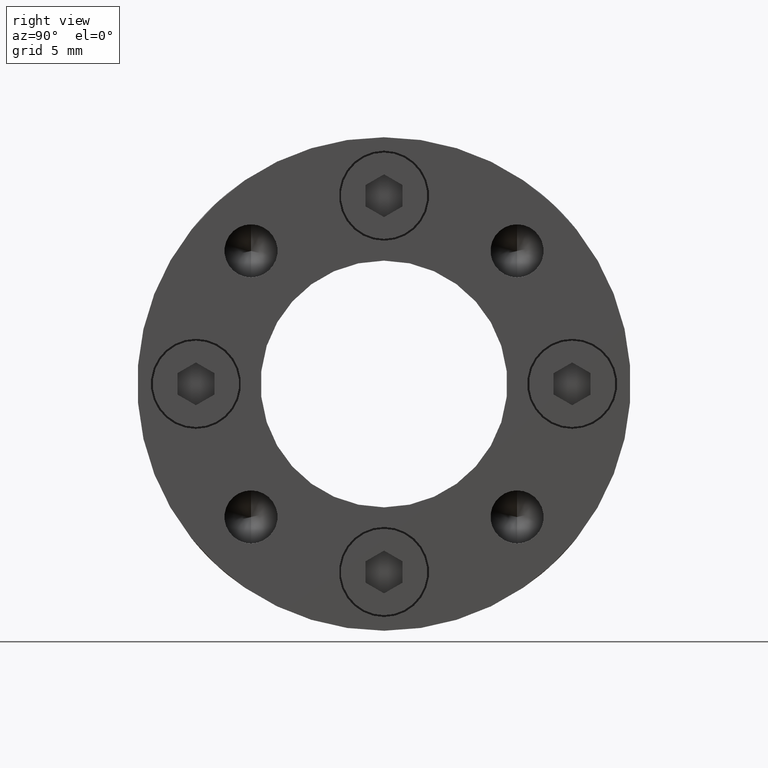
[diagram: clean part render]
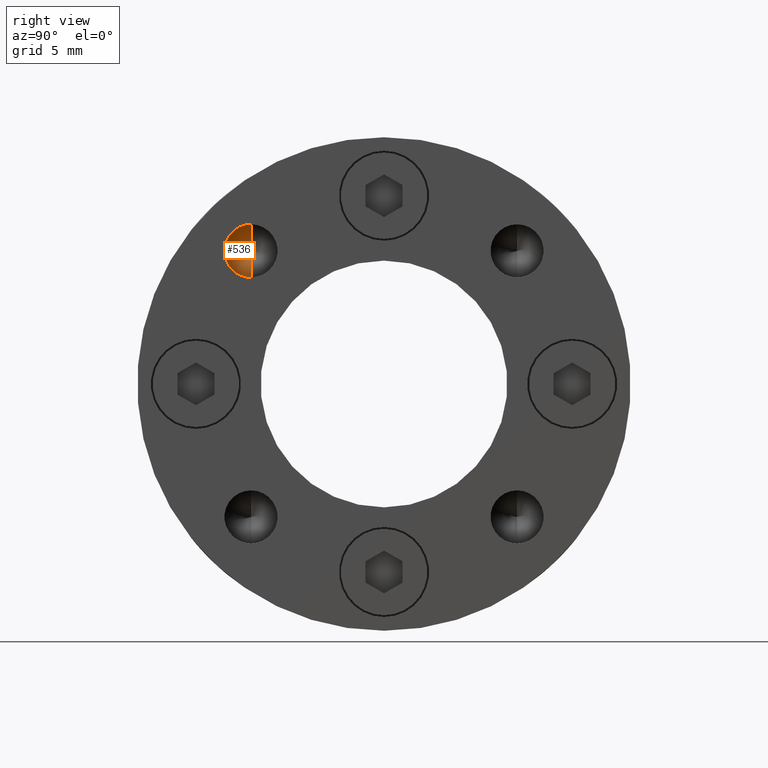
[diagram: same view with one face highlighted and labeled with its STEP entity id]
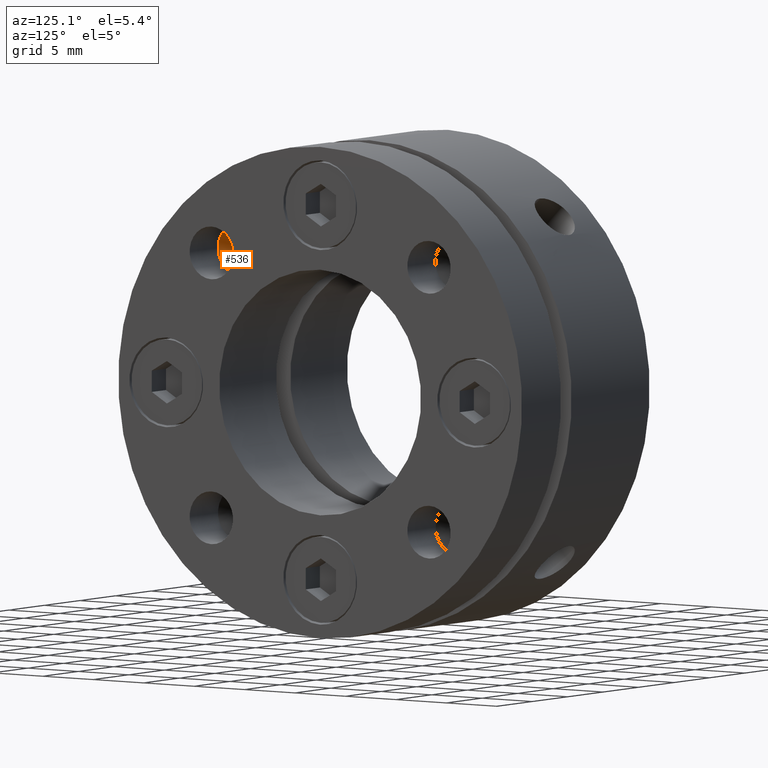
[diagram: same view with one face highlighted and labeled with its STEP entity id]
A machine part, right view. The second image highlights one B-rep face of the part: STEP entity #536.
A second angle (auxiliary view) of the same face is appended — the face is thin or edge-on in the first view.
In plain terms, the highlighted conical surface has half-angle 59 deg.
Its self-contained STEP definition (entity closure, byte-faithful):
#236 = FACE_OUTER_BOUND ( 'NONE', #3262, .T. ) ;
#244 = CONICAL_SURFACE ( 'NONE', #2377, 2.149999999147894400, 1.029744257503080600 ) ;
#536 = ADVANCED_FACE ( 'NONE', ( #236 ), #244, .F. ) ;
#1106 = LINE ( 'NONE', #1790, #1112 ) ;
#1112 = VECTOR ( 'NONE', #1793, 1000.000000000000200 ) ;
#1171 = LINE ( 'NONE', #1691, #1173 ) ;
#1173 = VECTOR ( 'NONE', #1690, 1000.000000000000200 ) ;
#1190 = CIRCLE ( 'NONE', #2186, 2.150000000000000800 ) ;
#1300 = VERTEX_POINT ( 'NONE', #1954 ) ;
#1338 = VERTEX_POINT ( 'NONE', #1928 ) ;
#1486 = ORIENTED_EDGE ( 'NONE', *, *, #2542, .F. ) ;
#1488 = ORIENTED_EDGE ( 'NONE', *, *, #2501, .T. ) ;
#1489 = ORIENTED_EDGE ( 'NONE', *, *, #2555, .T. ) ;
#1520 = VERTEX_POINT ( 'NONE', #1867 ) ;
#1652 = DIRECTION ( 'NONE',  ( 0.0000000000000000000, 0.0000000000000000000, -1.000000000000000000 ) ) ;
#1653 = DIRECTION ( 'NONE',  ( 1.000000000000000000, 0.0000000000000000000, 0.0000000000000000000 ) ) ;
#1654 = CARTESIAN_POINT ( 'NONE',  ( 13.99999999999999500, -10.78337841309485200, 10.78337841309485200 ) ) ;
#1690 = DIRECTION ( 'NONE',  ( 0.5150380759160032600, 0.0000000000000000000, -0.8571673000976770500 ) ) ;
#1691 = CARTESIAN_POINT ( 'NONE',  ( 14.00000000120371600, -10.78337841309485200, 8.633378413946957200 ) ) ;
#1790 = CARTESIAN_POINT ( 'NONE',  ( 14.00000000120371600, -10.78337841309485200, 12.93337841224274600 ) ) ;
#1793 = DIRECTION ( 'NONE',  ( 0.5150380759160032600, 1.049727190398399000E-016, 0.8571673000976770500 ) ) ;
#1867 = CARTESIAN_POINT ( 'NONE',  ( 12.70814966738953400, -10.78337841309485200, 10.78337841306620200 ) ) ;
#1928 = CARTESIAN_POINT ( 'NONE',  ( 13.99999999999999500, -10.78337841309485200, 12.93337841023941700 ) ) ;
#1954 = CARTESIAN_POINT ( 'NONE',  ( 13.99999999999999500, -10.78337841309485200, 8.633378415950284400 ) ) ;
#2186 = AXIS2_PLACEMENT_3D ( 'NONE', #1654, #1653, #1652 ) ;
#2377 = AXIS2_PLACEMENT_3D ( 'NONE', #3295, #3298, #3290 ) ;
#2501 = EDGE_CURVE ( 'NONE', #1520, #1338, #1106, .T. ) ;
#2542 = EDGE_CURVE ( 'NONE', #1520, #1300, #1171, .T. ) ;
#2555 = EDGE_CURVE ( 'NONE', #1338, #1300, #1190, .T. ) ;
#3262 = EDGE_LOOP ( 'NONE', ( #1486, #1488, #1489 ) ) ;
#3290 = DIRECTION ( 'NONE',  ( 0.0000000000000000000, 0.0000000000000000000, -1.000000000000000000 ) ) ;
#3295 = CARTESIAN_POINT ( 'NONE',  ( 14.00000000120371600, -10.78337841309485200, 10.78337841309485200 ) ) ;
#3298 = DIRECTION ( 'NONE',  ( 1.000000000000000000, 0.0000000000000000000, 0.0000000000000000000 ) ) ;